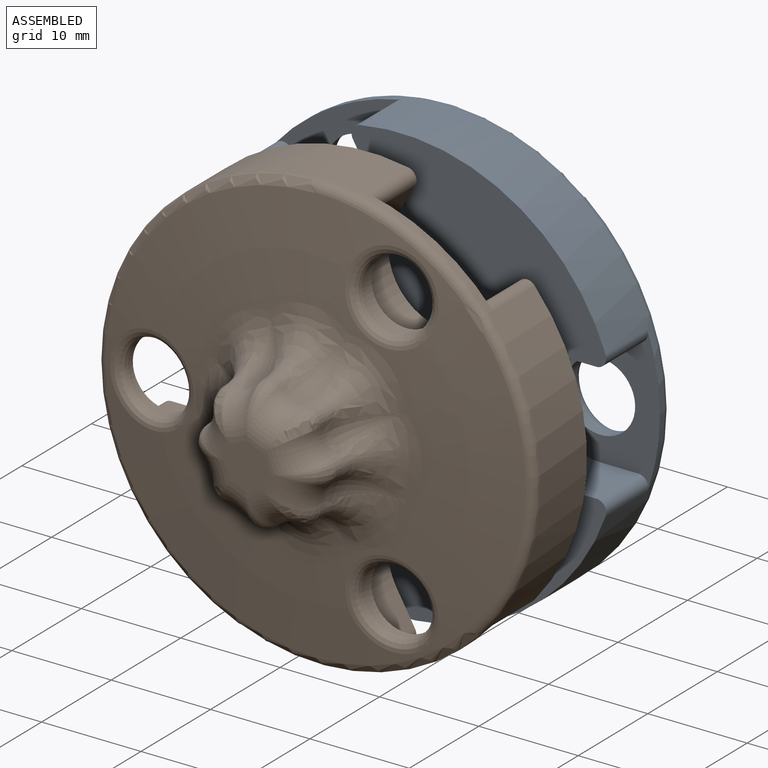
[diagram: assembled view]
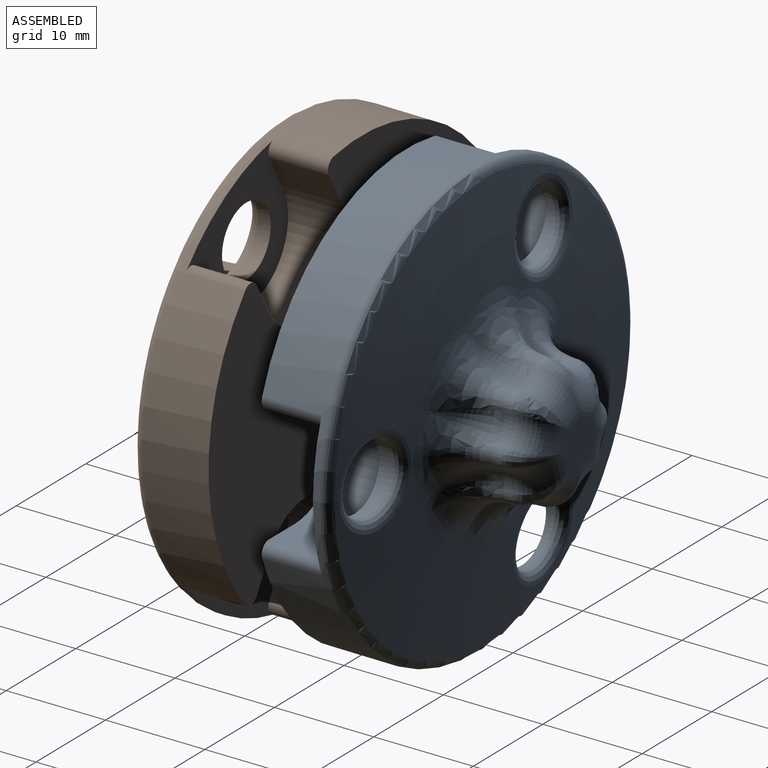
[diagram: assembled view, second angle]
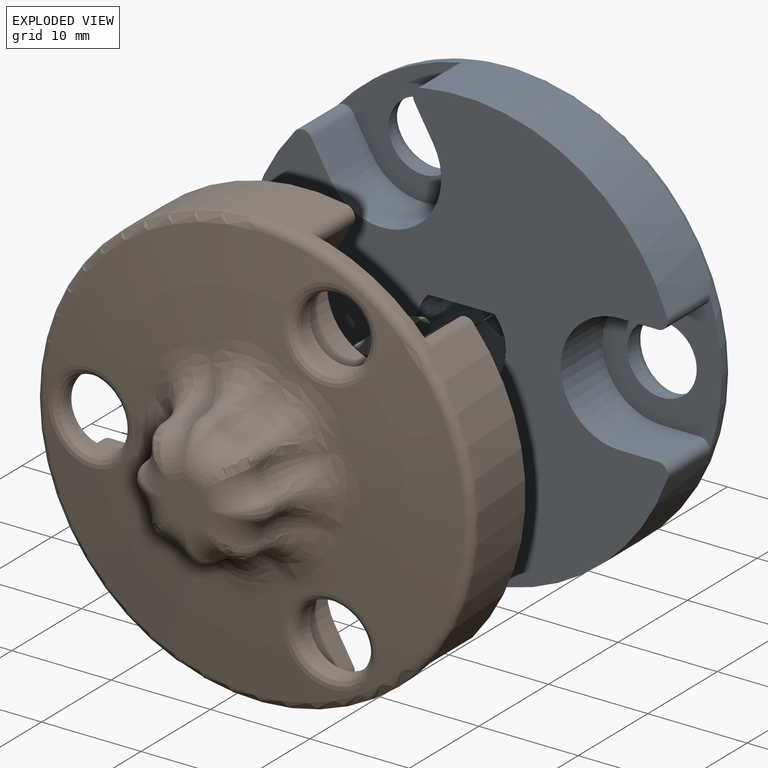
[diagram: exploded view]
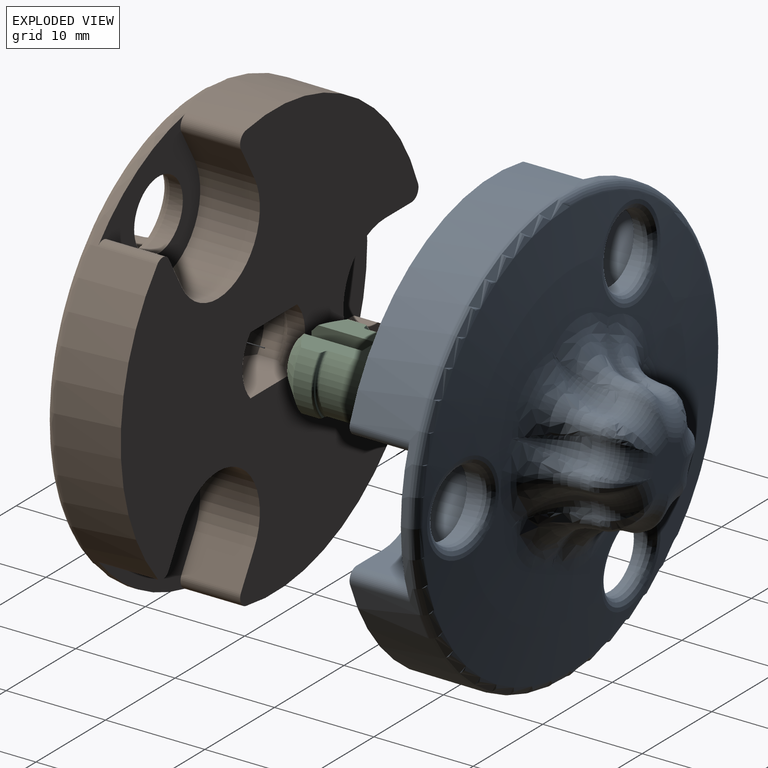
[diagram: exploded view, second angle]
ASSEMBLY  parts=3 mates=2
PART A: 87 faces, bbox 47.8x17.7x47.8 mm
  f0: plane 44x42.8mm, normal (0,1,0), area 1092.5mm2, adj f1,f4,f7,f11,f12,f17,f18,f19
  f1: cylinder r=22mm len=44mm, axis (0,-1,0), area 646.7mm2, adj f0,f13,f20,f24,f28,f29,f30,f31
  f2: sphere r=162.08mm, area 856.2mm2, adj f13,f35,f36,f37,f71,f74,f75,f78
  f3: cylinder r=5mm len=6mm, axis (0,-1,0), area 12.6mm2, adj f5,f9,f11,f12
  f4: cylinder r=4.5mm len=6mm, axis (0,-1,0), area 11.8mm2, adj f0,f5,f11,f12
  f5: torus R=4.25mm, axis (0,-1,0), area 6.1mm2, adj f3,f4,f11,f12
  f6: cylinder r=5mm len=6mm, axis (0,-1,0), area 12.6mm2, adj f9,f10,f11,f12
  f7: cylinder r=4.5mm len=6mm, axis (0,-1,0), area 11.8mm2, adj f0,f10,f11,f12
  f8: plane 5.41x5.41mm, normal (0,1,0), area 23mm2, adj f9
  f9: cone r=2.71mm half-angle=45deg, axis (0,1,0), area 46.9mm2, adj f3,f6,f8,f11,f12
  f10: torus R=4.25mm, axis (0,-1,0), area 6.1mm2, adj f6,f7,f11,f12
  f11: plane 8.2x6.65mm, normal (1,0,0), area 43.2mm2, adj f0,f3,f4,f5,f6,f7,f9,f10
  f12: plane 8.2x6.65mm, normal (-1,0,0), area 43.2mm2, adj f0,f3,f4,f5,f6,f7,f9,f10
  f13: torus R=21mm, axis (0,1,0), area 196.2mm2, adj f1,f2
  f14: cylinder r=3.5mm len=7mm, axis (0,1,0), area 25.1mm2, adj f24,f37
  f15: cylinder r=3.5mm len=7mm, axis (0,1,0), area 27.4mm2, adj f20,f36
  f16: cylinder r=3.5mm len=7mm, axis (0,1,0), area 25.1mm2, adj f28,f35
  f17: plane 6x3.29mm, normal (0.5,0,0.87), area 22.8mm2, adj f0,f19,f20,f29
  f18: plane 6x3.29mm, normal (-0.5,0,-0.87), area 22.8mm2, adj f0,f19,f20,f30
  f19: cylinder r=6mm len=11.2mm, axis (0,1,0), area 113.1mm2, adj f0,f17,f18,f20
  f20: plane 14.72x13.77mm, normal (0,1,0), area 87.6mm2, adj f1,f15,f17,f18,f19,f29,f30
  f21: plane 6x3.8mm, normal (-1,0,0), area 22.8mm2, adj f0,f23,f24,f31
  f22: plane 6x3.8mm, normal (1,0,0), area 22.8mm2, adj f0,f23,f24,f32
  f23: cylinder r=6mm len=12mm, axis (0,1,0), area 113.1mm2, adj f0,f21,f22,f24
  f24: plane 14.67x12mm, normal (0,1,0), area 87.6mm2, adj f1,f14,f21,f22,f23,f31,f32
  f25: plane 6x3.29mm, normal (0.5,0,-0.87), area 22.8mm2, adj f0,f27,f28,f33
  f26: plane 6x3.29mm, normal (-0.5,0,0.87), area 22.8mm2, adj f0,f27,f28,f34
  f27: cylinder r=6mm len=11.2mm, axis (0,1,0), area 113.1mm2, adj f0,f25,f26,f28
  f28: plane 14.72x13.77mm, normal (0,1,0), area 87.6mm2, adj f1,f16,f25,f26,f27,f33,f34
  f29: cylinder r=1mm len=6mm, axis (0,-1,0), area 11.5mm2, adj f0,f1,f17,f20
  f30: cylinder r=1mm len=6mm, axis (0,-1,0), area 11.5mm2, adj f0,f1,f18,f20
  f31: cylinder r=1mm len=6mm, axis (0,-1,0), area 11.5mm2, adj f0,f1,f21,f24
  f32: cylinder r=1mm len=6mm, axis (0,-1,0), area 11.5mm2, adj f0,f1,f22,f24
  f33: cylinder r=1mm len=6mm, axis (0,-1,0), area 11.5mm2, adj f0,f1,f25,f28
  f34: cylinder r=1mm len=6mm, axis (0,-1,0), area 11.5mm2, adj f0,f1,f26,f28
  f35: bspline ~9.07x9.06mm, area 39mm2, adj f2,f16
  f36: bspline ~9.07x9.07mm, area 39mm2, adj f2,f15
  f37: bspline ~9.07x9.07mm, area 39mm2, adj f2,f14
  f38: cone r=2.36mm half-angle=3deg, axis (0,-1,0), area 2.3mm2, adj f39,f53,f66,f84
  f39: cone r=1.55mm half-angle=3deg, axis (0,1,0), area 1.8mm2, adj f38,f40,f64,f86
  f40: cone r=2.36mm half-angle=3deg, axis (0,-1,0), area 2.3mm2, adj f39,f41,f62,f85
  f41: cone r=1.55mm half-angle=3deg, axis (0,1,0), area 1.8mm2, adj f40,f42,f60,f83
  f42: cone r=2.36mm half-angle=3deg, axis (0,-1,0), area 2.3mm2, adj f41,f43,f58,f81
  f43: cone r=1.55mm half-angle=3deg, axis (0,1,0), area 1.8mm2, adj f42,f44,f56,f79
  f44: cone r=2.36mm half-angle=3deg, axis (0,-1,0), area 2.3mm2, adj f43,f45,f55,f77
  f45: cone r=1.55mm half-angle=3deg, axis (0,1,0), area 1.8mm2, adj f44,f46,f57,f75
  f46: cone r=2.36mm half-angle=3deg, axis (0,-1,0), area 2.3mm2, adj f45,f47,f59,f73
  f47: cone r=1.55mm half-angle=3deg, axis (0,1,0), area 1.8mm2, adj f46,f48,f61,f71
  f48: cone r=2.36mm half-angle=3deg, axis (0,-1,0), area 2.3mm2, adj f47,f49,f63,f72
  f49: cone r=1.55mm half-angle=3deg, axis (0,1,0), area 1.8mm2, adj f48,f50,f65,f74
  f50: cone r=2.36mm half-angle=3deg, axis (0,-1,0), area 2.3mm2, adj f49,f51,f67,f76
  f51: cone r=1.55mm half-angle=3deg, axis (0,1,0), area 1.8mm2, adj f50,f52,f69,f78
  f52: cone r=2.36mm half-angle=3deg, axis (0,-1,0), area 2.3mm2, adj f51,f53,f70,f80
  f53: cone r=1.55mm half-angle=3deg, axis (0,1,0), area 1.8mm2, adj f38,f52,f68,f82
  f54: plane 4.83x4.83mm, normal (0,-1,0), area 15.8mm2, adj f55,f58,f59,f62,f63,f66,f67,f70
  f55: torus R=6.21mm, axis (0,-1,0), area 14mm2, adj f44,f54,f56,f57
  f56: bspline ~4.27x3.32mm, area 4.6mm2, adj f43,f55,f58
  f57: bspline ~3.38x3.37mm, area 4.6mm2, adj f45,f55,f59
  f58: torus R=6.21mm, axis (0,-1,0), area 14mm2, adj f42,f54,f56,f60
  f59: torus R=6.21mm, axis (0,-1,0), area 14mm2, adj f46,f54,f57,f61
  f60: bspline ~3.38x3.37mm, area 4.6mm2, adj f41,f58,f62
  f61: bspline ~4.27x3.32mm, area 4.6mm2, adj f47,f59,f63
  f62: torus R=6.21mm, axis (0,-1,0), area 14mm2, adj f40,f54,f60,f64
  f63: torus R=6.21mm, axis (0,-1,0), area 14mm2, adj f48,f54,f61,f65
  f64: bspline ~4.27x3.32mm, area 4.6mm2, adj f39,f62,f66
  f65: bspline ~3.38x3.37mm, area 4.6mm2, adj f49,f63,f67
  f66: torus R=6.21mm, axis (0,-1,0), area 14mm2, adj f38,f54,f64,f68
  f67: torus R=6.21mm, axis (0,-1,0), area 14mm2, adj f50,f54,f65,f69
  f68: bspline ~3.38x3.37mm, area 4.6mm2, adj f53,f66,f70
  f69: bspline ~4.27x3.32mm, area 4.6mm2, adj f51,f67,f70
  f70: torus R=6.21mm, axis (0,-1,0), area 14mm2, adj f52,f54,f68,f69
  f71: bspline ~10.75x5.47mm, area 36.5mm2, adj f2,f47,f72,f73
  f72: bspline ~4.76x4.74mm, area 11.6mm2, adj f48,f71,f74
  f73: bspline ~4.76x4.75mm, area 8.1mm2, adj f46,f71,f75
  f74: bspline ~8.4x8.4mm, area 36.5mm2, adj f2,f49,f72,f76
  f75: bspline ~8.4x8.4mm, area 36.5mm2, adj f2,f45,f73,f77
  f76: bspline ~4.76x4.74mm, area 12mm2, adj f50,f74,f78
  f77: bspline ~4.76x4.75mm, area 8.1mm2, adj f44,f75,f79
  f78: bspline ~11.21x5.47mm, area 36.5mm2, adj f2,f51,f76,f80
  f79: bspline ~10.75x5.47mm, area 36.5mm2, adj f2,f43,f77,f81
  f80: bspline ~4.76x4.74mm, area 11.8mm2, adj f52,f78,f82
  f81: bspline ~4.76x4.75mm, area 8mm2, adj f42,f79,f83
  f82: bspline ~8.4x7.44mm, area 36.5mm2, adj f2,f53,f80,f84
  f83: bspline ~8.4x7.44mm, area 36.5mm2, adj f2,f41,f81,f85
  f84: bspline ~4.76x4.74mm, area 12mm2, adj f38,f82,f86
  f85: bspline ~4.76x4.75mm, area 7.8mm2, adj f40,f83,f86
  f86: bspline ~11.21x5.47mm, area 36.5mm2, adj f2,f39,f84,f85
PART B: same geometry as A
PART C: 38 faces, bbox 9.8x16.1x8.6 mm
  f0: torus R=4.25mm, axis (0,-1,0), area 2.6mm2, adj f1,f5,f19,f20
  f1: torus R=4.25mm, axis (0,-1,0), area 2.6mm2, adj f0,f2,f19,f20
  f2: cylinder r=4.5mm len=6mm, axis (0,-1,0), area 11.5mm2, adj f1,f3,f19,f20
  f3: cone r=2.5mm half-angle=45deg, axis (0,1,0), area 19.6mm2, adj f2,f11,f14,f18,f19,f20
  f4: plane 6x3mm, normal (0,-1,0), area 13.5mm2, adj f11,f12,f13,f15,f17,f18,f19,f20
  f5: cylinder r=4mm len=7.5mm, axis (0,-1,0), area 50.9mm2, adj f0,f19,f20,f21
  f6: cylinder r=4mm len=7.5mm, axis (0,-1,0), area 50.9mm2, adj f7,f19,f20,f26
  f7: torus R=4.25mm, axis (0,-1,0), area 2.6mm2, adj f6,f8,f19,f20
  f8: torus R=4.25mm, axis (0,-1,0), area 2.6mm2, adj f7,f9,f19,f20
  f9: cylinder r=4.5mm len=6mm, axis (0,-1,0), area 11.5mm2, adj f8,f10,f19,f20
  f10: cone r=2.5mm half-angle=45deg, axis (0,1,0), area 19.6mm2, adj f9,f12,f16,f17,f19,f20
  f11: plane 6.53x1.91mm, normal (-1,0,0), area 12mm2, adj f3,f4,f13,f14,f20
  f12: plane 6.53x1.91mm, normal (1,0,0), area 12mm2, adj f4,f10,f15,f16,f20
  f13: cylinder r=1.5mm len=6.5mm, axis (0,-1,0), area 16.4mm2, adj f4,f11,f14,f18
  f14: plane 4.58x1.5mm, normal (0,-1,0), area 4.2mm2, adj f3,f11,f13,f18
  f15: cylinder r=1.5mm len=6.5mm, axis (0,-1,0), area 16.4mm2, adj f4,f12,f16,f17
  f16: plane 4.58x1.5mm, normal (0,-1,0), area 4.2mm2, adj f10,f12,f15,f17
  f17: plane 6.53x1.91mm, normal (1,0,0), area 12mm2, adj f4,f10,f15,f16,f19
  f18: plane 6.53x1.91mm, normal (-1,0,0), area 12mm2, adj f3,f4,f13,f14,f19
  f19: plane 14.77x6.8mm, normal (0,0,1), area 58.3mm2, adj f0,f1,f2,f3,f4,f5,f6,f7
  f20: plane 14.77x6.8mm, normal (0,0,-1), area 58.3mm2, adj f0,f1,f2,f3,f4,f5,f6,f7
  f21: torus R=4.25mm, axis (0,1,0), area 2.6mm2, adj f5,f19,f20,f22
  f22: torus R=4.25mm, axis (0,1,0), area 2.6mm2, adj f19,f20,f21,f23
  f23: cylinder r=4.5mm len=6mm, axis (0,1,0), area 11.5mm2, adj f19,f20,f22,f24
  f24: cone r=2.5mm half-angle=45deg, axis (0,-1,0), area 19.6mm2, adj f19,f20,f23,f30,f33,f37
  f25: plane 6x3mm, normal (0,1,0), area 13.5mm2, adj f19,f20,f30,f31,f32,f34,f36,f37
  f26: torus R=4.25mm, axis (0,1,0), area 2.6mm2, adj f6,f19,f20,f27
  f27: torus R=4.25mm, axis (0,1,0), area 2.6mm2, adj f19,f20,f26,f28
  f28: cylinder r=4.5mm len=6mm, axis (0,1,0), area 11.5mm2, adj f19,f20,f27,f29
  f29: cone r=2.5mm half-angle=45deg, axis (0,-1,0), area 19.6mm2, adj f19,f20,f28,f31,f35,f36
  f30: plane 6.53x1.91mm, normal (-1,0,0), area 12mm2, adj f20,f24,f25,f32,f33
  f31: plane 6.53x1.91mm, normal (1,0,0), area 12mm2, adj f20,f25,f29,f34,f35
  f32: cylinder r=1.5mm len=6.5mm, axis (0,1,0), area 16.4mm2, adj f25,f30,f33,f37
  f33: plane 4.58x1.5mm, normal (0,1,0), area 4.2mm2, adj f24,f30,f32,f37
  f34: cylinder r=1.5mm len=6.5mm, axis (0,1,0), area 16.4mm2, adj f25,f31,f35,f36
  f35: plane 4.58x1.5mm, normal (0,1,0), area 4.2mm2, adj f29,f31,f34,f36
  f36: plane 6.53x1.91mm, normal (1,0,0), area 12mm2, adj f19,f25,f29,f34,f35
  f37: plane 6.53x1.91mm, normal (-1,0,0), area 12mm2, adj f19,f24,f25,f32,f33
PLACE A rot(axis=(0.71,0,0.71),180deg) t=(-157.4,0.12,157.4)mm
PLACE B rot(axis=(0,-1,0),90deg) t=(104.84,-0.88,157.4)mm
PLACE C t=(-26.28,-0.38,-38.96)mm
MATE fastened A.f1 <-> C.f0  axis (0,-1,0) through (-26.28,8.62,131.12)mm
MATE fastened C.f0 <-> B.f1  axis (0,-1,0) through (-26.28,-8.38,131.12)mm
